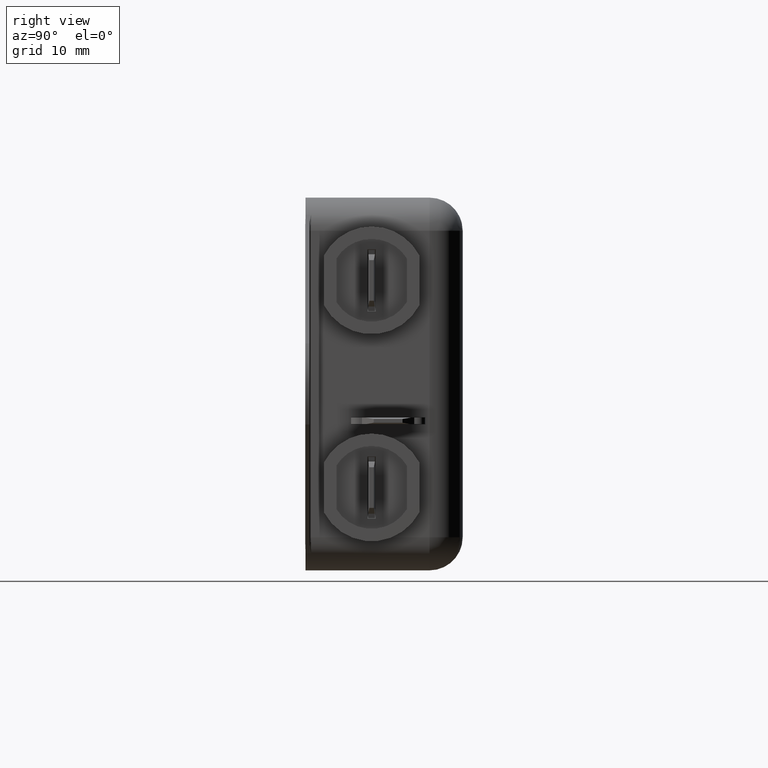
[diagram: clean part render]
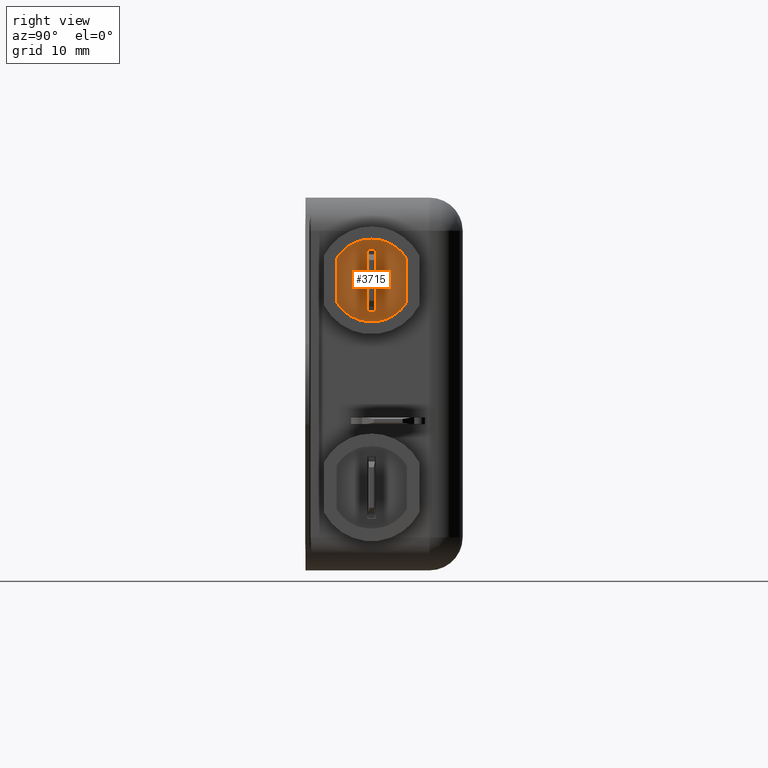
[diagram: same view with one face highlighted and labeled with its STEP entity id]
A machine part, right view. The second image highlights one B-rep face of the part: STEP entity #3715.
In plain terms, the highlighted planar face has unit normal (1, -0, -0).
Its self-contained STEP definition (entity closure, byte-faithful):
#3715=ADVANCED_FACE('NONE',(#7167,#7168),#7169,.T.);
#3793=EDGE_CURVE('NONE',#7286,#7283,#7287,.T.);
#3799=EDGE_CURVE('NONE',#7283,#7291,#7294,.T.);
#3803=EDGE_CURVE('NONE',#7291,#7296,#7299,.T.);
#3805=EDGE_CURVE('NONE',#7301,#7302,#7303,.T.);
#3833=EDGE_CURVE('NONE',#7341,#7344,#7345,.T.);
#3913=EDGE_CURVE('NONE',#7302,#7341,#7452,.T.);
#3915=EDGE_CURVE('NONE',#7454,#7301,#7455,.T.);
#3917=EDGE_CURVE('NONE',#7344,#7454,#7457,.T.);
#3919=EDGE_CURVE('NONE',#7296,#7286,#7459,.T.);
#7167=FACE_OUTER_BOUND('',#12081,.T.);
#7168=FACE_BOUND('',#12082,.T.);
#7169=PLANE('',#12083);
#7283=VERTEX_POINT('NONE',#12222);
#7286=VERTEX_POINT('NONE',#12227);
#7287=LINE('',#12228,#12229);
#7291=VERTEX_POINT('NONE',#12236);
#7294=LINE('',#12241,#12242);
#7296=VERTEX_POINT('NONE',#12245);
#7299=LINE('',#12250,#12251);
#7301=VERTEX_POINT('NONE',#12254);
#7302=VERTEX_POINT('NONE',#12255);
#7303=CIRCLE('',#12256,5.0);
#7341=VERTEX_POINT('NONE',#12313);
#7344=VERTEX_POINT('NONE',#12318);
#7345=CIRCLE('',#12319,5.0);
#7452=LINE('',#12502,#12503);
#7454=VERTEX_POINT('NONE',#12506);
#7455=CIRCLE('',#12507,5.0);
#7457=LINE('',#12510,#12511);
#7459=LINE('',#12514,#12515);
#12081=EDGE_LOOP('',(#16661,#16662,#16663,#16664,#16665));
#12082=EDGE_LOOP('',(#16666,#16667,#16668,#16669));
#12083=AXIS2_PLACEMENT_3D('',#16670,#16671,#16672);
#12222=CARTESIAN_POINT('',(2.00000000000595,7.49999999999974,-587.382817374769));
#12227=CARTESIAN_POINT('',(2.00000000000595,8.49999999999974,-587.382817374769));
#12228=CARTESIAN_POINT('',(2.00000000000595,8.49999999999974,-587.382817374769));
#12229=VECTOR('',#16895,1.0);
#12236=CARTESIAN_POINT('',(2.00000000000595,7.49999999999966,-579.882817374768));
#12241=CARTESIAN_POINT('',(2.00000000000595,7.49999999999974,-587.382817374769));
#12242=VECTOR('',#16898,1.0);
#12245=CARTESIAN_POINT('',(2.00000000000595,8.49999999999966,-579.882817374768));
#12250=CARTESIAN_POINT('',(2.00000000000595,8.49999999999966,-579.882817374768));
#12251=VECTOR('',#16900,1.0);
#12254=CARTESIAN_POINT('',(2.00000000000595,7.99999999999964,-578.632817374769));
#12255=CARTESIAN_POINT('',(2.00000000000595,12.2499999999997,-580.998903936555));
#12256=AXIS2_PLACEMENT_3D('',#16901,#16902,#16903);
#12313=CARTESIAN_POINT('',(2.00000000000595,12.2499999999997,-586.266730812982));
#12318=CARTESIAN_POINT('',(2.00000000000595,3.74999999999973,-586.266730812982));
#12319=AXIS2_PLACEMENT_3D('',#16929,#16930,#16931);
#12502=CARTESIAN_POINT('',(2.00000000000595,12.2499999999997,-586.266730812982));
#12503=VECTOR('',#16977,1.0);
#12506=CARTESIAN_POINT('',(2.00000000000595,3.74999999999967,-580.998903936555));
#12507=AXIS2_PLACEMENT_3D('',#16978,#16979,#16980);
#12510=CARTESIAN_POINT('',(2.00000000000595,3.74999999999973,-586.266730812982));
#12511=VECTOR('',#16981,1.0);
#12514=CARTESIAN_POINT('',(2.00000000000595,8.49999999999974,-587.382817374769));
#12515=VECTOR('',#16982,1.0);
#16661=ORIENTED_EDGE('',*,*,#3833,.F.);
#16662=ORIENTED_EDGE('',*,*,#3913,.F.);
#16663=ORIENTED_EDGE('',*,*,#3805,.F.);
#16664=ORIENTED_EDGE('',*,*,#3915,.F.);
#16665=ORIENTED_EDGE('',*,*,#3917,.F.);
#16666=ORIENTED_EDGE('',*,*,#3803,.T.);
#16667=ORIENTED_EDGE('',*,*,#3919,.T.);
#16668=ORIENTED_EDGE('',*,*,#3793,.T.);
#16669=ORIENTED_EDGE('',*,*,#3799,.T.);
#16670=CARTESIAN_POINT('',(2.00000000000595,7.9999999999997,-583.632817374769));
#16671=DIRECTION('',(1.0,-5.55111512312499E-017,-7.27366154732493E-016));
#16672=DIRECTION('',(-5.5511151231258E-017,-1.0,-1.11161080340594E-014));
#16895=DIRECTION('',(-5.55111512312586E-017,-1.0,-1.11161080340594E-014));
#16898=DIRECTION('',(7.27366154732492E-016,-1.11305640630258E-014,1.0));
#16900=DIRECTION('',(5.5511151231258E-017,1.0,1.0248746296071E-014));
#16901=CARTESIAN_POINT('',(2.00000000000595,7.9999999999997,-583.632817374769));
#16902=DIRECTION('',(-1.0,5.55111512312499E-017,7.27366154732493E-016));
#16903=DIRECTION('',(7.27366154732493E-016,-1.11161080340594E-014,1.0));
#16929=CARTESIAN_POINT('',(2.00000000000595,7.9999999999997,-583.632817374769));
#16930=DIRECTION('',(-1.0,5.55111512312499E-017,7.27366154732493E-016));
#16931=DIRECTION('',(7.27366154732493E-016,-1.11161080340594E-014,1.0));
#16977=DIRECTION('',(-7.27366154732492E-016,1.11161080340594E-014,-1.0));
#16978=CARTESIAN_POINT('',(2.00000000000595,7.9999999999997,-583.632817374769));
#16979=DIRECTION('',(-1.0,5.55111512312499E-017,7.27366154732493E-016));
#16980=DIRECTION('',(7.27366154732493E-016,-1.11161080340594E-014,1.0));
#16981=DIRECTION('',(7.27366154732492E-016,-1.11161080340594E-014,1.0));
#16982=DIRECTION('',(-7.27366154732492E-016,1.11161080340594E-014,-1.0));